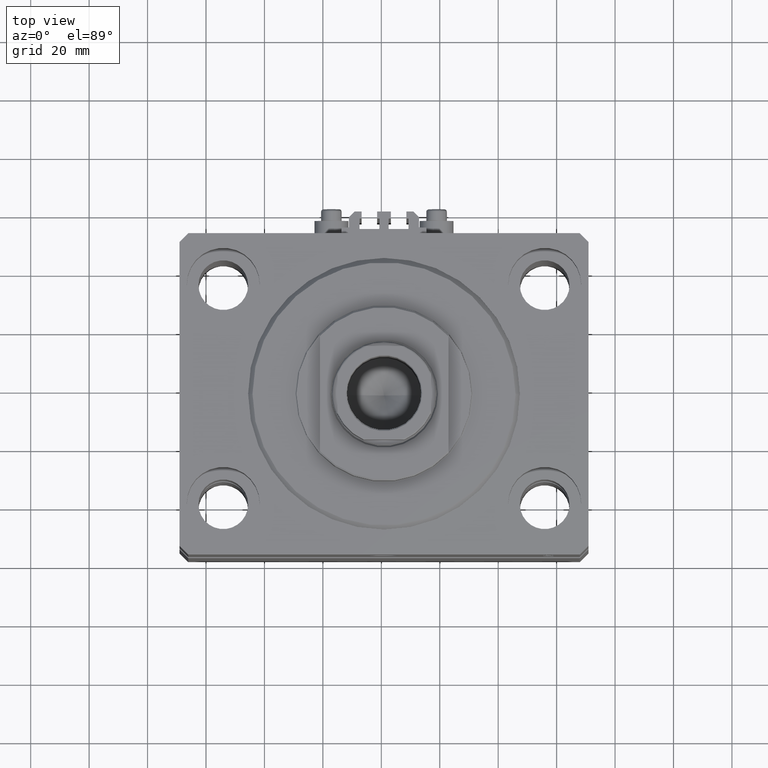
[diagram: clean part render]
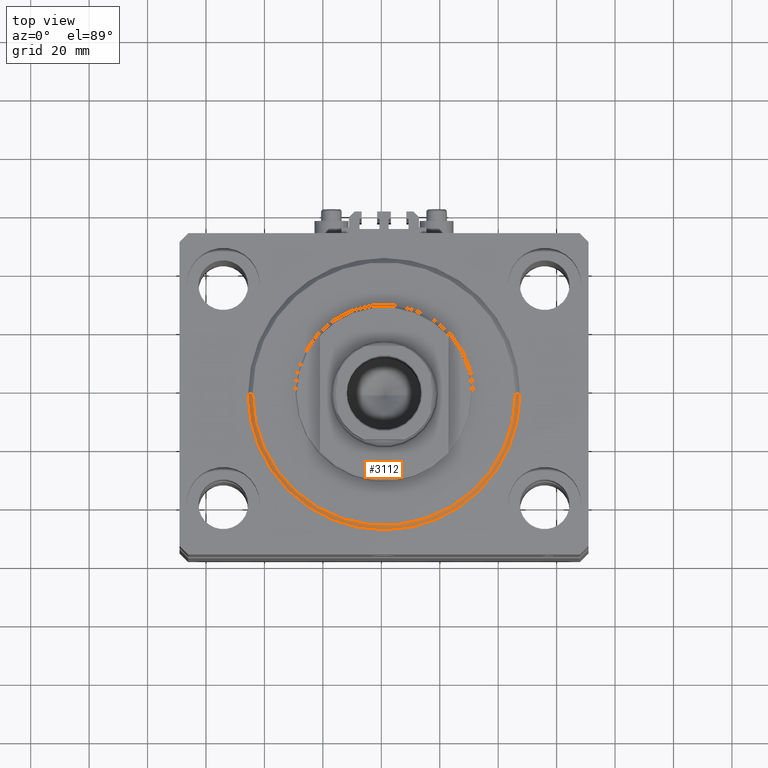
[diagram: same view with one face highlighted and labeled with its STEP entity id]
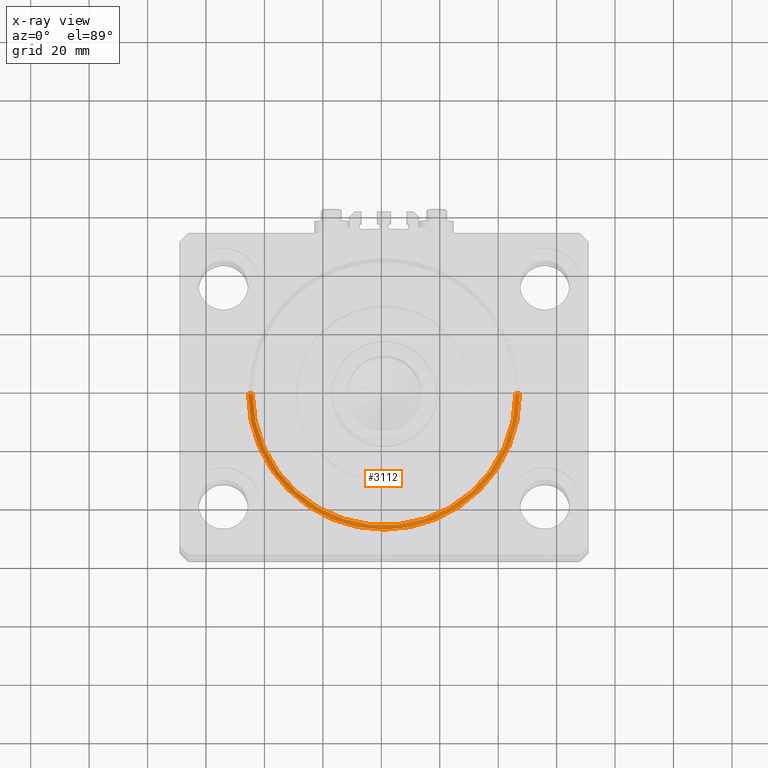
[diagram: x-ray of the same camera — body ghosted, the highlighted face saturated]
A machine part, top view. The second image highlights one B-rep face of the part: STEP entity #3112.
The next image is the same camera in x-ray: the body ghosted, the highlighted face saturated — about 0% of this face is hidden behind the body in this view.
In plain terms, the highlighted conical surface has half-angle 45 deg.
Its self-contained STEP definition (entity closure, byte-faithful):
#1580 = DIRECTION ( 'NONE',  ( -0.7071067811865507924, 8.659560562354972301E-17, 0.7071067811865441310 ) ) ;
#2883 = DIRECTION ( 'NONE',  ( -0.000000000000000000, -0.000000000000000000, 1.000000000000000000 ) ) ;
#2890 = AXIS2_PLACEMENT_3D ( 'NONE', #48484, #48005, #36641 ) ;
#3112 = ADVANCED_FACE ( 'NONE', ( #13949 ), #35165, .T. ) ;
#3373 = DIRECTION ( 'NONE',  ( 1.000000000000000000, 0.000000000000000000, 0.000000000000000000 ) ) ;
#3956 = CARTESIAN_POINT ( 'NONE',  ( 45.00000000000001421, 0.000000000000000000, 0.000000000000000000 ) ) ;
#8530 = EDGE_CURVE ( 'NONE', #35735, #40246, #35375, .T. ) ;
#9513 = LINE ( 'NONE', #24566, #13797 ) ;
#11844 = EDGE_CURVE ( 'NONE', #40246, #33652, #27487, .T. ) ;
#13797 = VECTOR ( 'NONE', #35896, 1000.000000000000114 ) ;
#13949 = FACE_OUTER_BOUND ( 'NONE', #36863, .T. ) ;
#16622 = CIRCLE ( 'NONE', #40267, 45.00000000000001421 ) ;
#18366 = CARTESIAN_POINT ( 'NONE',  ( -45.00000000000001421, 5.602759106099141706E-15, 0.000000000000000000 ) ) ;
#18562 = CARTESIAN_POINT ( 'NONE',  ( 46.50000000000000000, 5.694607616035192278E-15, 1.499999999999973577 ) ) ;
#18657 = VERTEX_POINT ( 'NONE', #3956 ) ;
#20652 = CARTESIAN_POINT ( 'NONE',  ( -46.50000000000000000, 0.000000000000000000, 1.499999999999973577 ) ) ;
#24566 = CARTESIAN_POINT ( 'NONE',  ( 46.50000000000000000, 0.000000000000000000, 1.499999999999973577 ) ) ;
#27487 = CIRCLE ( 'NONE', #33802, 46.50000000000000000 ) ;
#30185 = ORIENTED_EDGE ( 'NONE', *, *, #47436, .T. ) ;
#30235 = ORIENTED_EDGE ( 'NONE', *, *, #8530, .F. ) ;
#30946 = CARTESIAN_POINT ( 'NONE',  ( -46.50000000000000000, 5.694607616035192278E-15, 1.499999999999973577 ) ) ;
#31096 = DIRECTION ( 'NONE',  ( 1.000000000000000000, 0.000000000000000000, 0.000000000000000000 ) ) ;
#33652 = VERTEX_POINT ( 'NONE', #18562 ) ;
#33802 = AXIS2_PLACEMENT_3D ( 'NONE', #44579, #2883, #3373 ) ;
#34555 = DIRECTION ( 'NONE',  ( -0.000000000000000000, -0.000000000000000000, -1.000000000000000000 ) ) ;
#35165 = CONICAL_SURFACE ( 'NONE', #2890, 46.50000000000000000, 0.7853981633974529419 ) ;
#35375 = LINE ( 'NONE', #30946, #36158 ) ;
#35735 = VERTEX_POINT ( 'NONE', #18366 ) ;
#35896 = DIRECTION ( 'NONE',  ( 0.7071067811865507924, 0.000000000000000000, 0.7071067811865441310 ) ) ;
#36158 = VECTOR ( 'NONE', #1580, 1000.000000000000114 ) ;
#36641 = DIRECTION ( 'NONE',  ( 1.000000000000000000, 0.000000000000000000, 0.000000000000000000 ) ) ;
#36863 = EDGE_LOOP ( 'NONE', ( #30235, #40560, #30185, #41334 ) ) ;
#37738 = EDGE_CURVE ( 'NONE', #18657, #35735, #16622, .T. ) ;
#39484 = CARTESIAN_POINT ( 'NONE',  ( 0.000000000000000000, 0.000000000000000000, 0.000000000000000000 ) ) ;
#40246 = VERTEX_POINT ( 'NONE', #20652 ) ;
#40267 = AXIS2_PLACEMENT_3D ( 'NONE', #39484, #34555, #31096 ) ;
#40560 = ORIENTED_EDGE ( 'NONE', *, *, #37738, .F. ) ;
#41334 = ORIENTED_EDGE ( 'NONE', *, *, #11844, .F. ) ;
#44579 = CARTESIAN_POINT ( 'NONE',  ( 0.000000000000000000, 0.000000000000000000, 1.499999999999973577 ) ) ;
#47436 = EDGE_CURVE ( 'NONE', #18657, #33652, #9513, .T. ) ;
#48005 = DIRECTION ( 'NONE',  ( -0.000000000000000000, -0.000000000000000000, 1.000000000000000000 ) ) ;
#48484 = CARTESIAN_POINT ( 'NONE',  ( 0.000000000000000000, 0.000000000000000000, 1.499999999999973577 ) ) ;